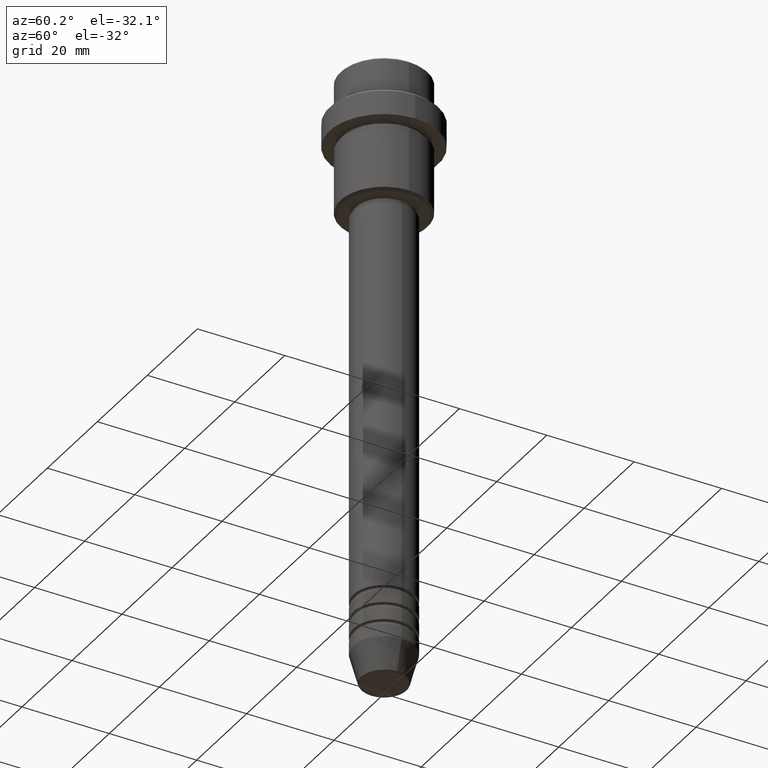
[diagram: clean part render]
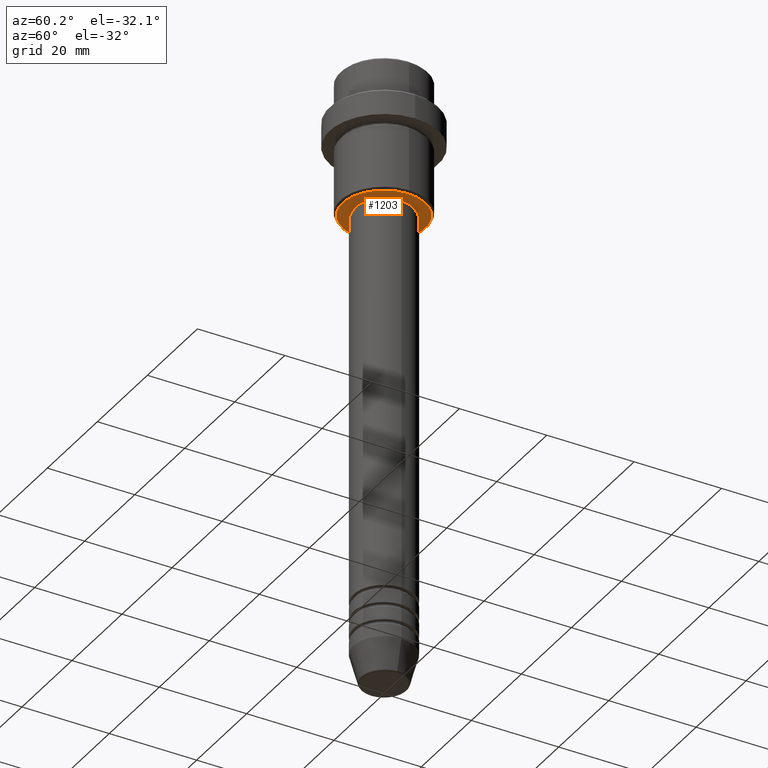
[diagram: same view with one face highlighted and labeled with its STEP entity id]
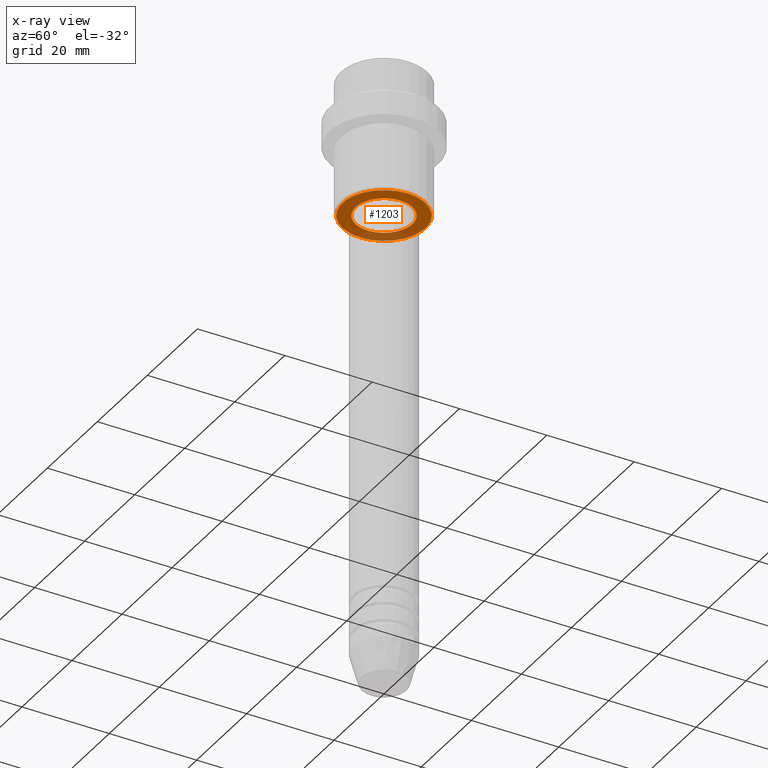
[diagram: x-ray of the same camera — body ghosted, the highlighted face saturated]
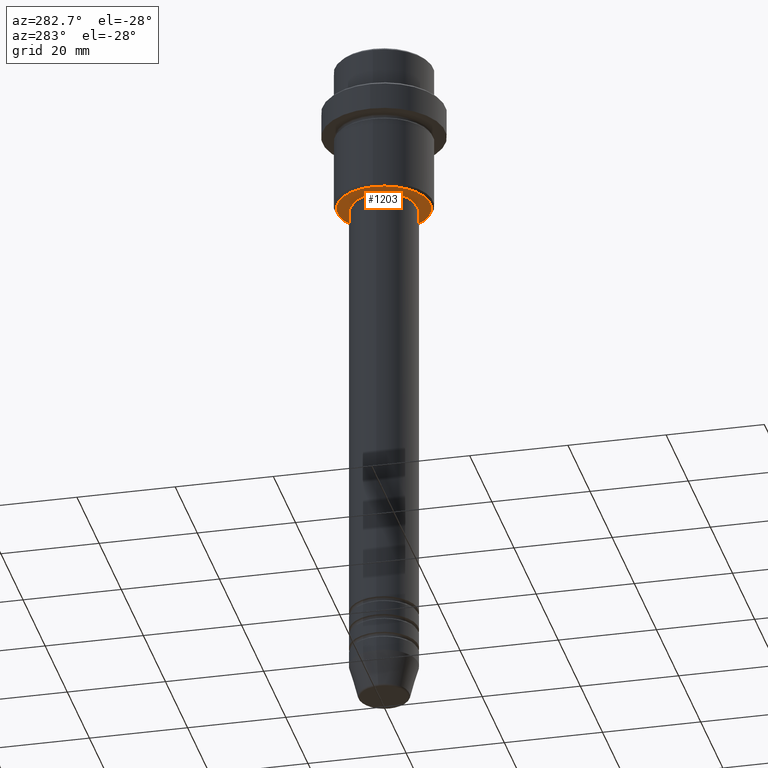
[diagram: same view with one face highlighted and labeled with its STEP entity id]
A machine part, auxiliary view. The second image highlights one B-rep face of the part: STEP entity #1203.
The next image is the same camera in x-ray: the body ghosted, the highlighted face saturated — about 18% of this face is hidden behind the body in this view.
A second angle (auxiliary view) of the same face is appended — the face is thin or edge-on in the first view.
In plain terms, the highlighted planar face has unit normal (0, 0, -1).
Its self-contained STEP definition (entity closure, byte-faithful):
#2 = CIRCLE ( 'NONE', #973, 6.499999999999994671 ) ;
#15 = DIRECTION ( 'NONE',  ( 0.000000000000000000, 0.000000000000000000, -1.000000000000000000 ) ) ;
#73 = VERTEX_POINT ( 'NONE', #311 ) ;
#152 = DIRECTION ( 'NONE',  ( 1.000000000000000000, 0.000000000000000000, 0.000000000000000000 ) ) ;
#171 = ORIENTED_EDGE ( 'NONE', *, *, #196, .T. ) ;
#172 = FACE_OUTER_BOUND ( 'NONE', #268, .T. ) ;
#179 = DIRECTION ( 'NONE',  ( -1.000000000000000000, 0.000000000000000000, -0.000000000000000000 ) ) ;
#196 = EDGE_CURVE ( 'NONE', #1117, #73, #474, .T. ) ;
#205 = EDGE_CURVE ( 'NONE', #1179, #896, #2, .T. ) ;
#226 = AXIS2_PLACEMENT_3D ( 'NONE', #652, #15, #1083 ) ;
#247 = CARTESIAN_POINT ( 'NONE',  ( 9.499999999999994671, 0.000000000000000000, -31.00000000000000000 ) ) ;
#268 = EDGE_LOOP ( 'NONE', ( #171, #556 ) ) ;
#311 = CARTESIAN_POINT ( 'NONE',  ( -9.499999999999994671, 1.194030629168669075E-15, -31.00000000000000000 ) ) ;
#319 = CARTESIAN_POINT ( 'NONE',  ( 6.499999999999994671, 0.000000000000000000, -31.00000000000000000 ) ) ;
#320 = CARTESIAN_POINT ( 'NONE',  ( 0.000000000000000000, 0.000000000000000000, -31.00000000000000000 ) ) ;
#346 = EDGE_CURVE ( 'NONE', #896, #1179, #1371, .T. ) ;
#451 = CARTESIAN_POINT ( 'NONE',  ( 0.000000000000000000, 0.000000000000000000, -31.00000000000000000 ) ) ;
#474 = CIRCLE ( 'NONE', #226, 9.499999999999994671 ) ;
#476 = DIRECTION ( 'NONE',  ( -0.000000000000000000, -0.000000000000000000, 1.000000000000000000 ) ) ;
#491 = CARTESIAN_POINT ( 'NONE',  ( -6.499999999999994671, 7.960204194457788574E-16, -31.00000000000000000 ) ) ;
#531 = EDGE_CURVE ( 'NONE', #73, #1117, #1329, .T. ) ;
#556 = ORIENTED_EDGE ( 'NONE', *, *, #531, .T. ) ;
#652 = CARTESIAN_POINT ( 'NONE',  ( 0.000000000000000000, 0.000000000000000000, -31.00000000000000000 ) ) ;
#708 = CARTESIAN_POINT ( 'NONE',  ( 0.000000000000000000, 9.999999999999998224, -31.00000000000000000 ) ) ;
#721 = AXIS2_PLACEMENT_3D ( 'NONE', #1362, #476, #152 ) ;
#734 = ORIENTED_EDGE ( 'NONE', *, *, #205, .T. ) ;
#847 = ORIENTED_EDGE ( 'NONE', *, *, #346, .T. ) ;
#862 = DIRECTION ( 'NONE',  ( 0.000000000000000000, 0.000000000000000000, -1.000000000000000000 ) ) ;
#864 = DIRECTION ( 'NONE',  ( -0.000000000000000000, -0.000000000000000000, 1.000000000000000000 ) ) ;
#876 = DIRECTION ( 'NONE',  ( 1.000000000000000000, 0.000000000000000000, 0.000000000000000000 ) ) ;
#896 = VERTEX_POINT ( 'NONE', #319 ) ;
#945 = PLANE ( 'NONE',  #1291 ) ;
#973 = AXIS2_PLACEMENT_3D ( 'NONE', #451, #864, #876 ) ;
#979 = DIRECTION ( 'NONE',  ( -1.000000000000000000, 0.000000000000000000, 0.000000000000000000 ) ) ;
#1083 = DIRECTION ( 'NONE',  ( -1.000000000000000000, 0.000000000000000000, 0.000000000000000000 ) ) ;
#1117 = VERTEX_POINT ( 'NONE', #247 ) ;
#1134 = DIRECTION ( 'NONE',  ( 0.000000000000000000, 0.000000000000000000, -1.000000000000000000 ) ) ;
#1149 = FACE_BOUND ( 'NONE', #1417, .T. ) ;
#1179 = VERTEX_POINT ( 'NONE', #491 ) ;
#1203 = ADVANCED_FACE ( 'NONE', ( #172, #1149 ), #945, .T. ) ;
#1256 = AXIS2_PLACEMENT_3D ( 'NONE', #320, #862, #979 ) ;
#1291 = AXIS2_PLACEMENT_3D ( 'NONE', #708, #1134, #179 ) ;
#1329 = CIRCLE ( 'NONE', #1256, 9.499999999999994671 ) ;
#1362 = CARTESIAN_POINT ( 'NONE',  ( 0.000000000000000000, 0.000000000000000000, -31.00000000000000000 ) ) ;
#1371 = CIRCLE ( 'NONE', #721, 6.499999999999994671 ) ;
#1417 = EDGE_LOOP ( 'NONE', ( #847, #734 ) ) ;